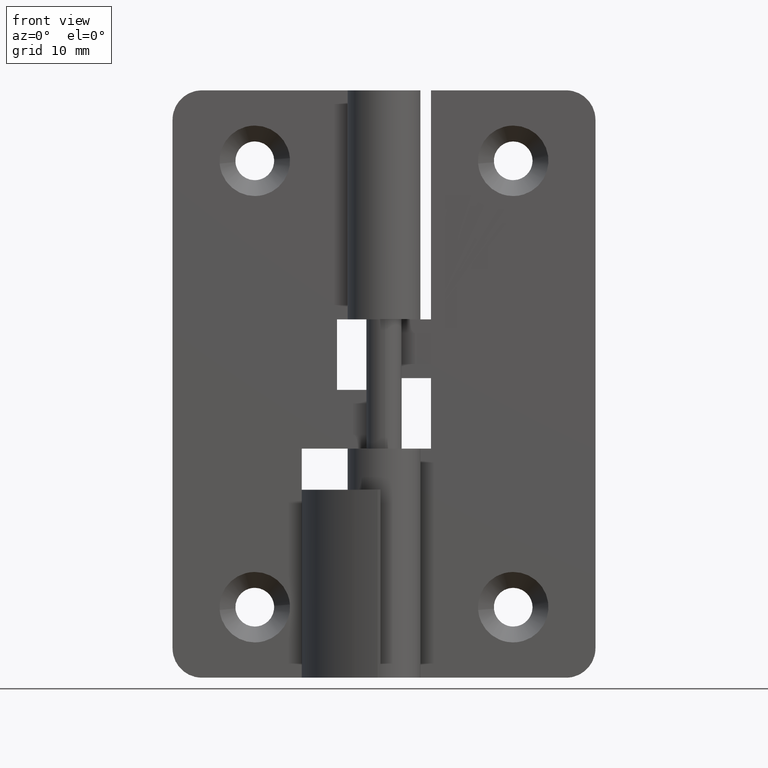
[diagram: clean part render]
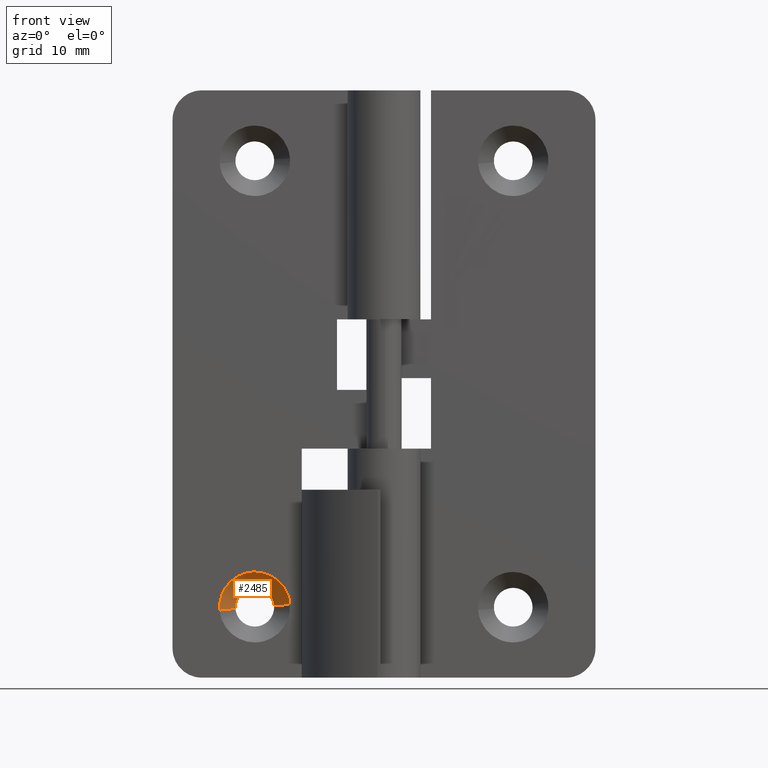
[diagram: same view with one face highlighted and labeled with its STEP entity id]
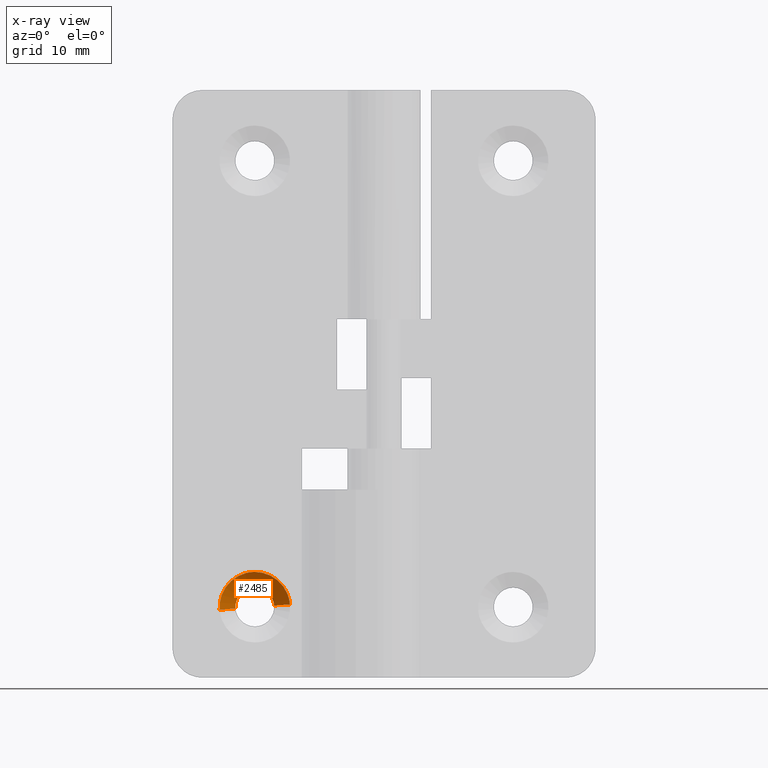
[diagram: x-ray of the same camera — body ghosted, the highlighted face saturated]
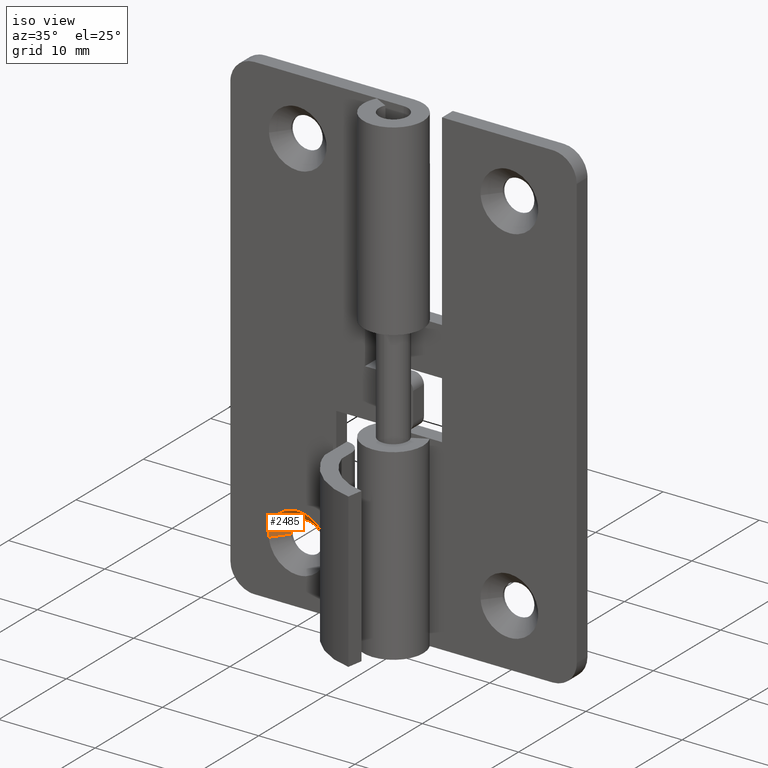
[diagram: same view with one face highlighted and labeled with its STEP entity id]
A machine part, front view. The second image highlights one B-rep face of the part: STEP entity #2485.
The next image is the same camera in x-ray: the body ghosted, the highlighted face saturated — about 0% of this face is hidden behind the body in this view.
A second angle (iso view) of the same face is appended — the face is thin or edge-on in the first view.
In plain terms, the highlighted face is a freeform B-spline surface patch.
Its self-contained STEP definition (entity closure, byte-faithful):
#2290=CARTESIAN_POINT('',(-12.646930415095150,2.849999999992002,5.899261627725922));
#2291=VERTEX_POINT('',#2290);
#2335=CARTESIAN_POINT('',(-9.355078423970969,2.849999999923365,6.129450136210352));
#2336=VERTEX_POINT('',#2335);
#2352=CARTESIAN_POINT('',(-11.0,2.850000000000000,7.650000000000000));
#2353=VERTEX_POINT('',#2352);
#2354=CARTESIAN_POINT('',(-11.0,2.850000000000000,7.650000000000000));
#2355=CARTESIAN_POINT('',(-9.474748294720127,2.850000000000000,7.650000000000000));
#2356=CARTESIAN_POINT('',(-9.355078423970969,2.849999999923365,6.129450136210352));
#2364=(BOUNDED_CURVE()B_SPLINE_CURVE(2,(#2354,#2355,#2356),.UNSPECIFIED.,.F.,.U.)B_SPLINE_CURVE_WITH_KNOTS((3,3),(0.0,0.236331300511747),.UNSPECIFIED.)CURVE()GEOMETRIC_REPRESENTATION_ITEM()RATIONAL_B_SPLINE_CURVE((1.0,0.723120658746980,0.969723355919257))REPRESENTATION_ITEM(''));
#2365=EDGE_CURVE('',#2353,#2336,#2364,.T.);
#2367=CARTESIAN_POINT('',(-12.646930415095147,2.849999999992002,5.899261627725922));
#2368=CARTESIAN_POINT('',(-12.650007999999994,2.850000000000000,5.949579799597885));
#2369=CARTESIAN_POINT('',(-12.650008000000000,2.850000000000000,5.999992000000000));
#2370=CARTESIAN_POINT('',(-12.650007999999998,2.850000000000001,7.650000000000000));
#2371=CARTESIAN_POINT('',(-11.0,2.850000000000000,7.650000000000000));
#2379=(BOUNDED_CURVE()B_SPLINE_CURVE(2,(#2367,#2368,#2369,#2370,#2371),.UNSPECIFIED.,.F.,.U.)B_SPLINE_CURVE_WITH_KNOTS((3,2,3),(0.739332983860654,0.750000000000000,1.0),.UNSPECIFIED.)CURVE()GEOMETRIC_REPRESENTATION_ITEM()RATIONAL_B_SPLINE_CURVE((0.976072088006165,0.987502813231247,1.0,0.707106781186548,1.0))REPRESENTATION_ITEM(''));
#2380=EDGE_CURVE('',#2291,#2353,#2379,.T.);
#2419=CARTESIAN_POINT('',(-9.388724384015164,2.883750000000001,6.126802141142896));
#2420=CARTESIAN_POINT('',(-9.515534525158060,2.883750000000001,7.738077757127732));
#2421=CARTESIAN_POINT('',(-11.126810141142901,2.883750000000001,7.611267615984836));
#2422=CARTESIAN_POINT('',(-12.738085757127731,2.883750000000001,7.484457474841940));
#2423=CARTESIAN_POINT('',(-12.611275615984839,2.883750000000001,5.873181858857103));
#2424=CARTESIAN_POINT('',(-7.974752914448117,1.465406250000000,6.238084109199138));
#2425=CARTESIAN_POINT('',(-8.212845023647256,1.465406250000000,9.263331194751022));
#2426=CARTESIAN_POINT('',(-11.238092109199140,1.465406250000000,9.025239085551883));
#2427=CARTESIAN_POINT('',(-14.263339194751024,1.465406250000000,8.787146976352744));
#2428=CARTESIAN_POINT('',(-14.025247085551880,1.465406250000000,5.761899890800862));
#2436=(BOUNDED_SURFACE()B_SPLINE_SURFACE(2,1,((#2419,#2424),(#2420,#2425),(#2421,#2426),(#2422,#2427),(#2423,#2428)),.UNSPECIFIED.,.F.,.F.,.U.)B_SPLINE_SURFACE_WITH_KNOTS((3,2,3),(2,2),(0.0,5.027892805004512,10.055785610009030),(0.0,2.005840967357116),.UNSPECIFIED.)GEOMETRIC_REPRESENTATION_ITEM()RATIONAL_B_SPLINE_SURFACE(((1.0,1.0),(0.707106781186548,0.707106781186548),(1.0,1.0),(0.707106781186548,0.707106781186548),(1.0,1.0)))REPRESENTATION_ITEM('')SURFACE());
#2437=ORIENTED_EDGE('',*,*,#2365,.T.);
#2438=CARTESIAN_POINT('',(-8.009240023461411,1.499999999998671,6.235369914866425));
#2439=VERTEX_POINT('',#2438);
#2440=CARTESIAN_POINT('',(-9.355078423970969,2.849999999923365,6.129450136210352));
#2441=CARTESIAN_POINT('',(-8.009240023461411,1.499999999998671,6.235369914866425));
#2442=QUASI_UNIFORM_CURVE('',1,(#2440,#2441),.UNSPECIFIED.,.F.,.U.);
#2443=EDGE_CURVE('',#2336,#2439,#2442,.T.);
#2444=ORIENTED_EDGE('',*,*,#2443,.T.);
#2445=CARTESIAN_POINT('',(-11.0,1.500000000000000,9.000000000000002));
#2446=VERTEX_POINT('',#2445);
#2447=CARTESIAN_POINT('',(-11.0,1.500000000000000,9.000000000000002));
#2448=CARTESIAN_POINT('',(-8.226821129920085,1.500000000000000,9.000000000000002));
#2449=CARTESIAN_POINT('',(-8.009240023461411,1.499999999998671,6.235369914866425));
#2457=(BOUNDED_CURVE()B_SPLINE_CURVE(2,(#2447,#2448,#2449),.UNSPECIFIED.,.F.,.U.)B_SPLINE_CURVE_WITH_KNOTS((3,3),(0.0,0.236331300631618),.UNSPECIFIED.)CURVE()GEOMETRIC_REPRESENTATION_ITEM()RATIONAL_B_SPLINE_CURVE((1.0,0.723120658606543,0.969723356169418))REPRESENTATION_ITEM(''));
#2458=EDGE_CURVE('',#2446,#2439,#2457,.T.);
#2459=ORIENTED_EDGE('',*,*,#2458,.F.);
#2460=CARTESIAN_POINT('',(-13.990759976538589,1.499999999998671,5.764614085133575));
#2461=VERTEX_POINT('',#2460);
#2462=CARTESIAN_POINT('',(-13.990759976538593,1.499999999998671,5.764614085133575));
#2463=CARTESIAN_POINT('',(-14.000007999999998,1.500000000000000,5.882121364646069));
#2464=CARTESIAN_POINT('',(-14.000007999999999,1.500000000000000,5.999992000000000));
#2465=CARTESIAN_POINT('',(-14.000007999999998,1.500000000000000,9.000000000000002));
#2466=CARTESIAN_POINT('',(-11.0,1.500000000000000,9.000000000000002));
#2474=(BOUNDED_CURVE()B_SPLINE_CURVE(2,(#2462,#2463,#2464,#2465,#2466),.UNSPECIFIED.,.F.,.U.)B_SPLINE_CURVE_WITH_KNOTS((3,2,3),(0.736331300631618,0.750000000000000,1.0),.UNSPECIFIED.)CURVE()GEOMETRIC_REPRESENTATION_ITEM()RATIONAL_B_SPLINE_CURVE((0.969723356169419,0.983986122580005,1.0,0.707106781186548,1.0))REPRESENTATION_ITEM(''));
#2475=EDGE_CURVE('',#2461,#2446,#2474,.T.);
#2476=ORIENTED_EDGE('',*,*,#2475,.F.);
#2477=CARTESIAN_POINT('',(-12.646930415095150,2.849999999992002,5.899261627725922));
#2478=CARTESIAN_POINT('',(-13.990759976538589,1.499999999998671,5.764614085133575));
#2479=QUASI_UNIFORM_CURVE('',1,(#2477,#2478),.UNSPECIFIED.,.F.,.U.);
#2480=EDGE_CURVE('',#2291,#2461,#2479,.T.);
#2481=ORIENTED_EDGE('',*,*,#2480,.F.);
#2482=ORIENTED_EDGE('',*,*,#2380,.T.);
#2483=EDGE_LOOP('',(#2437,#2444,#2459,#2476,#2481,#2482));
#2484=FACE_OUTER_BOUND('',#2483,.T.);
#2485=ADVANCED_FACE('',(#2484),#2436,.F.);